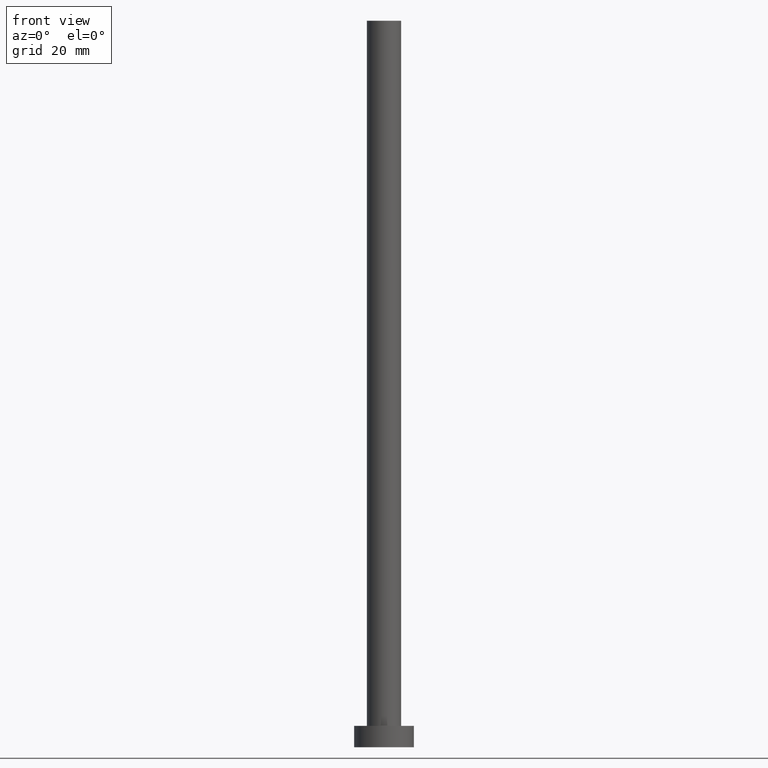
[diagram: clean part render]
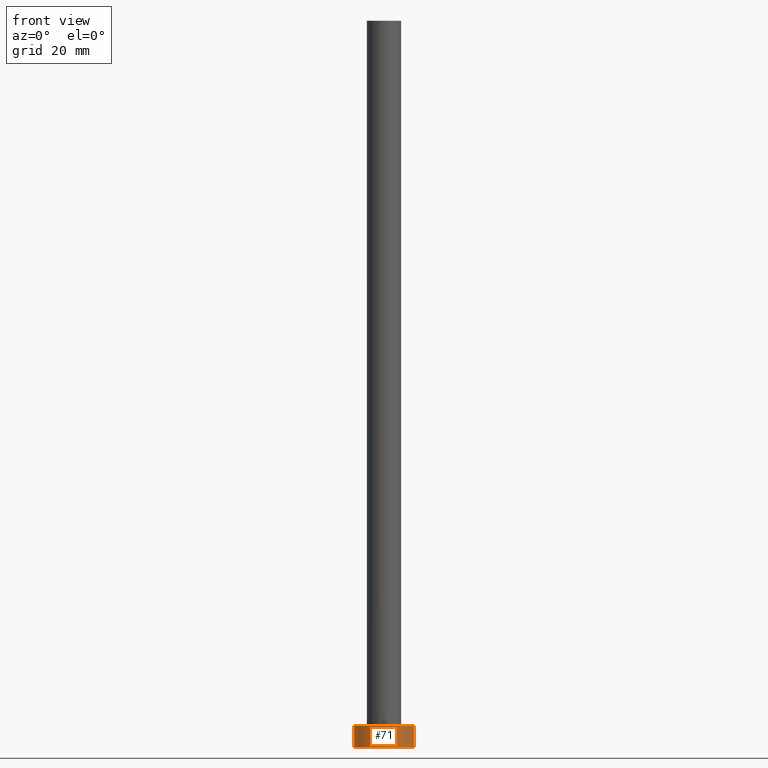
[diagram: same view with one face highlighted and labeled with its STEP entity id]
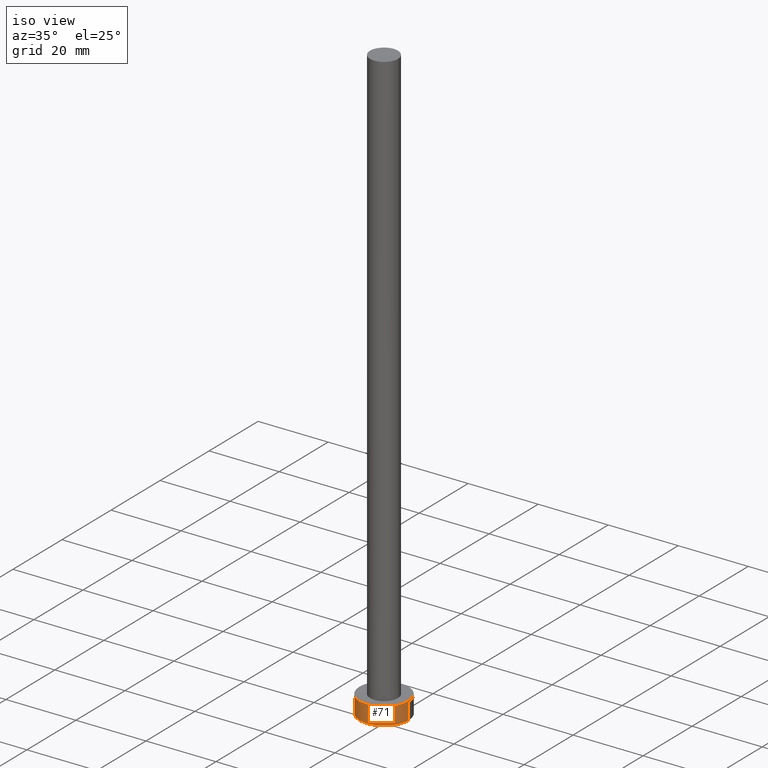
[diagram: same view with one face highlighted and labeled with its STEP entity id]
A machine part, front view. The second image highlights one B-rep face of the part: STEP entity #71.
A second angle (iso view) of the same face is appended — the face is thin or edge-on in the first view.
In plain terms, the highlighted cylindrical surface (edge-blend (fillet) strip) has radius 7 mm, axis along (-0, -0, -1).
Its self-contained STEP definition (entity closure, byte-faithful):
#1 = LINE ( 'NONE', #238, #43 ) ;
#2 = CARTESIAN_POINT ( 'NONE',  ( -7.000000000000000000, 0.000000000000000000, 0.000000000000000000 ) ) ;
#3 = DIRECTION ( 'NONE',  ( -0.000000000000000000, -0.000000000000000000, -1.000000000000000000 ) ) ;
#11 = VERTEX_POINT ( 'NONE', #116 ) ;
#19 = CARTESIAN_POINT ( 'NONE',  ( 0.000000000000000000, 0.000000000000000000, 5.000000000000000000 ) ) ;
#21 = CARTESIAN_POINT ( 'NONE',  ( 0.000000000000000000, 0.000000000000000000, 0.000000000000000000 ) ) ;
#33 = ORIENTED_EDGE ( 'NONE', *, *, #80, .T. ) ;
#41 = LINE ( 'NONE', #204, #78 ) ;
#43 = VECTOR ( 'NONE', #87, 1000.000000000000000 ) ;
#51 = CIRCLE ( 'NONE', #157, 7.000000000000000000 ) ;
#65 = DIRECTION ( 'NONE',  ( 0.000000000000000000, 0.000000000000000000, 1.000000000000000000 ) ) ;
#66 = CARTESIAN_POINT ( 'NONE',  ( 0.000000000000000000, 0.000000000000000000, 5.000000000000000000 ) ) ;
#71 = ADVANCED_FACE ( 'NONE', ( #85 ), #156, .T. ) ;
#78 = VECTOR ( 'NONE', #159, 1000.000000000000000 ) ;
#80 = EDGE_CURVE ( 'NONE', #98, #132, #1, .T. ) ;
#82 = CIRCLE ( 'NONE', #250, 7.000000000000000000 ) ;
#85 = FACE_OUTER_BOUND ( 'NONE', #234, .T. ) ;
#87 = DIRECTION ( 'NONE',  ( -0.000000000000000000, -0.000000000000000000, -1.000000000000000000 ) ) ;
#89 = EDGE_CURVE ( 'NONE', #132, #11, #82, .T. ) ;
#98 = VERTEX_POINT ( 'NONE', #222 ) ;
#103 = AXIS2_PLACEMENT_3D ( 'NONE', #66, #3, #122 ) ;
#116 = CARTESIAN_POINT ( 'NONE',  ( 7.000000000000000000, 8.572527594031473190E-16, 0.000000000000000000 ) ) ;
#122 = DIRECTION ( 'NONE',  ( -1.000000000000000000, 0.000000000000000000, 0.000000000000000000 ) ) ;
#132 = VERTEX_POINT ( 'NONE', #2 ) ;
#133 = ORIENTED_EDGE ( 'NONE', *, *, #194, .F. ) ;
#135 = ORIENTED_EDGE ( 'NONE', *, *, #137, .F. ) ;
#137 = EDGE_CURVE ( 'NONE', #251, #11, #41, .T. ) ;
#138 = DIRECTION ( 'NONE',  ( 1.000000000000000000, 0.000000000000000000, 0.000000000000000000 ) ) ;
#156 = CYLINDRICAL_SURFACE ( 'NONE', #103, 7.000000000000000000 ) ;
#157 = AXIS2_PLACEMENT_3D ( 'NONE', #19, #65, #180 ) ;
#159 = DIRECTION ( 'NONE',  ( -0.000000000000000000, -0.000000000000000000, -1.000000000000000000 ) ) ;
#180 = DIRECTION ( 'NONE',  ( 1.000000000000000000, 0.000000000000000000, 0.000000000000000000 ) ) ;
#194 = EDGE_CURVE ( 'NONE', #98, #251, #51, .T. ) ;
#196 = ORIENTED_EDGE ( 'NONE', *, *, #89, .T. ) ;
#204 = CARTESIAN_POINT ( 'NONE',  ( 7.000000000000000000, 8.572527594031473190E-16, 5.000000000000000000 ) ) ;
#221 = DIRECTION ( 'NONE',  ( 0.000000000000000000, 0.000000000000000000, 1.000000000000000000 ) ) ;
#222 = CARTESIAN_POINT ( 'NONE',  ( -7.000000000000000000, 0.000000000000000000, 5.000000000000000000 ) ) ;
#227 = CARTESIAN_POINT ( 'NONE',  ( 7.000000000000000000, 8.572527594031473190E-16, 5.000000000000000000 ) ) ;
#234 = EDGE_LOOP ( 'NONE', ( #135, #133, #33, #196 ) ) ;
#238 = CARTESIAN_POINT ( 'NONE',  ( -7.000000000000000000, 0.000000000000000000, 5.000000000000000000 ) ) ;
#250 = AXIS2_PLACEMENT_3D ( 'NONE', #21, #221, #138 ) ;
#251 = VERTEX_POINT ( 'NONE', #227 ) ;